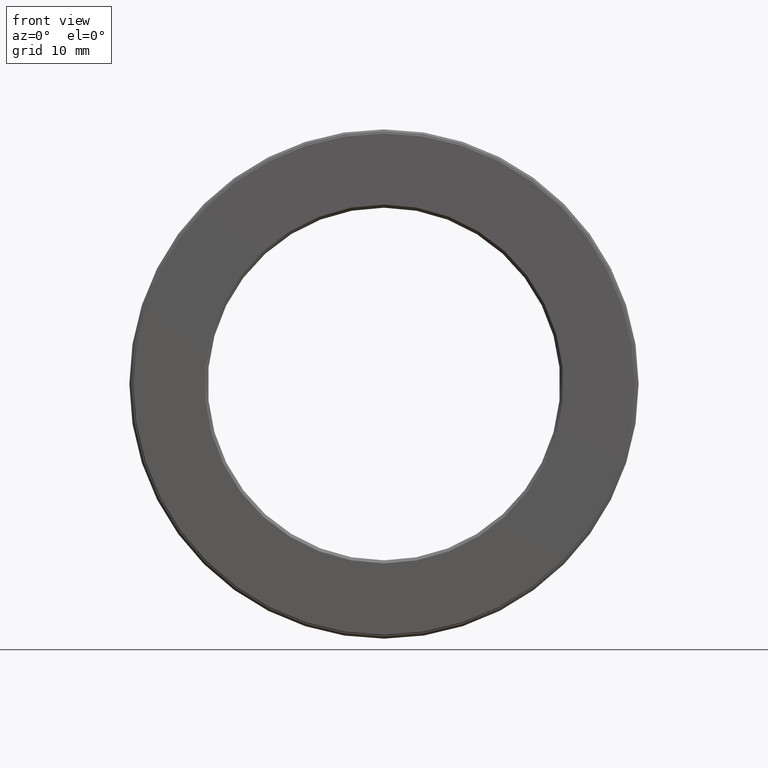
[diagram: clean part render]
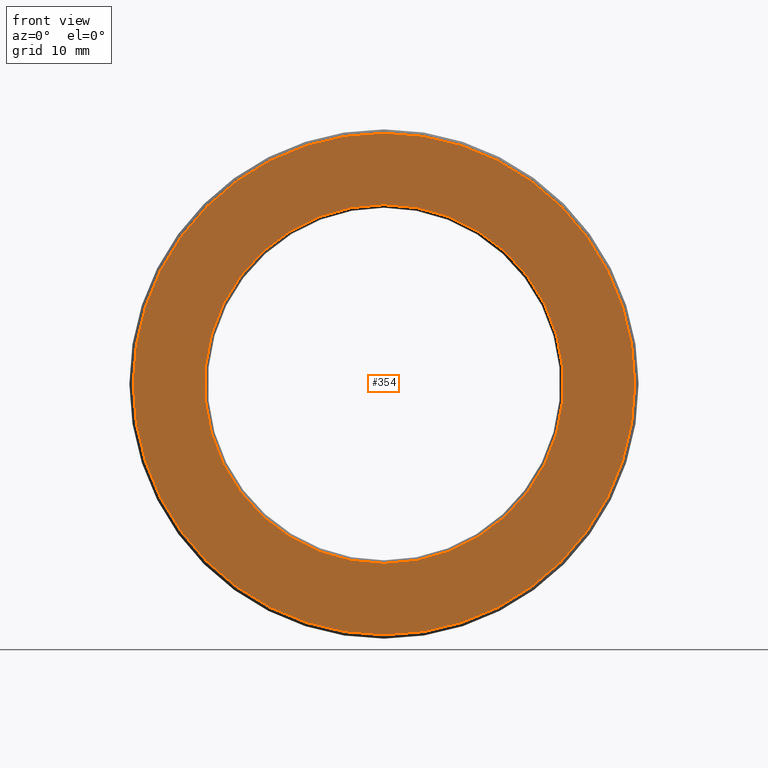
[diagram: same view with one face highlighted and labeled with its STEP entity id]
A machine part, front view. The second image highlights one B-rep face of the part: STEP entity #354.
In plain terms, the highlighted planar face has unit normal (-0, 1, 0).
Its self-contained STEP definition (entity closure, byte-faithful):
#7 = FACE_BOUND ( 'NONE', #321, .T. ) ;
#13 = FACE_OUTER_BOUND ( 'NONE', #119, .T. ) ;
#64 = AXIS2_PLACEMENT_3D ( 'NONE', #175, #418, #178 ) ;
#119 = EDGE_LOOP ( 'NONE', ( #449 ) ) ;
#121 = ORIENTED_EDGE ( 'NONE', *, *, #162, .T. ) ;
#146 = DIRECTION ( 'NONE',  ( 0.0000000000000000000, 0.0000000000000000000, 1.000000000000000000 ) ) ;
#162 = EDGE_CURVE ( 'NONE', #484, #484, #300, .T. ) ;
#175 = CARTESIAN_POINT ( 'NONE',  ( 0.0000000000000000000, -8.643737792453329500E-017, 0.0000000000000000000 ) ) ;
#178 = DIRECTION ( 'NONE',  ( 0.0000000000000000000, 0.0000000000000000000, 1.000000000000000000 ) ) ;
#194 = CARTESIAN_POINT ( 'NONE',  ( -4.132243084809358400E-032, 2.507751087933994500E-017, 0.0000000000000000000 ) ) ;
#219 = CARTESIAN_POINT ( 'NONE',  ( 0.0000000000000000000, -8.643737792453329500E-017, 1.599999999999999600 ) ) ;
#246 = PLANE ( 'NONE',  #292 ) ;
#254 = CIRCLE ( 'NONE', #64, 1.599999999999999600 ) ;
#292 = AXIS2_PLACEMENT_3D ( 'NONE', #194, #343, #433 ) ;
#300 = CIRCLE ( 'NONE', #313, 1.145000000000000500 ) ;
#313 = AXIS2_PLACEMENT_3D ( 'NONE', #334, #477, #146 ) ;
#321 = EDGE_LOOP ( 'NONE', ( #121 ) ) ;
#325 = VERTEX_POINT ( 'NONE', #219 ) ;
#334 = CARTESIAN_POINT ( 'NONE',  ( 0.0000000000000000000, 1.365923996832131600E-016, 0.0000000000000000000 ) ) ;
#343 = DIRECTION ( 'NONE',  ( -0.0000000000000000000, 1.000000000000000000, 0.0000000000000000000 ) ) ;
#354 = ADVANCED_FACE ( 'NONE', ( #13, #7 ), #246, .F. ) ;
#418 = DIRECTION ( 'NONE',  ( -0.0000000000000000000, 1.000000000000000000, -0.0000000000000000000 ) ) ;
#433 = DIRECTION ( 'NONE',  ( 0.0000000000000000000, 0.0000000000000000000, 1.000000000000000000 ) ) ;
#449 = ORIENTED_EDGE ( 'NONE', *, *, #501, .F. ) ;
#477 = DIRECTION ( 'NONE',  ( -0.0000000000000000000, 1.000000000000000000, -0.0000000000000000000 ) ) ;
#484 = VERTEX_POINT ( 'NONE', #595 ) ;
#501 = EDGE_CURVE ( 'NONE', #325, #325, #254, .T. ) ;
#595 = CARTESIAN_POINT ( 'NONE',  ( 0.0000000000000000000, 1.365923996832131600E-016, 1.145000000000000500 ) ) ;